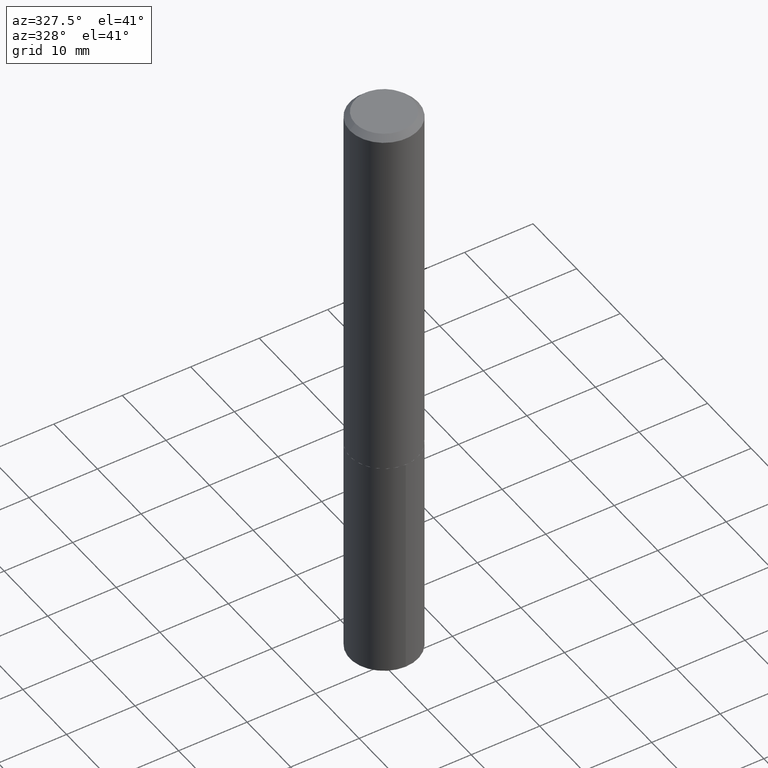
[diagram: clean part render]
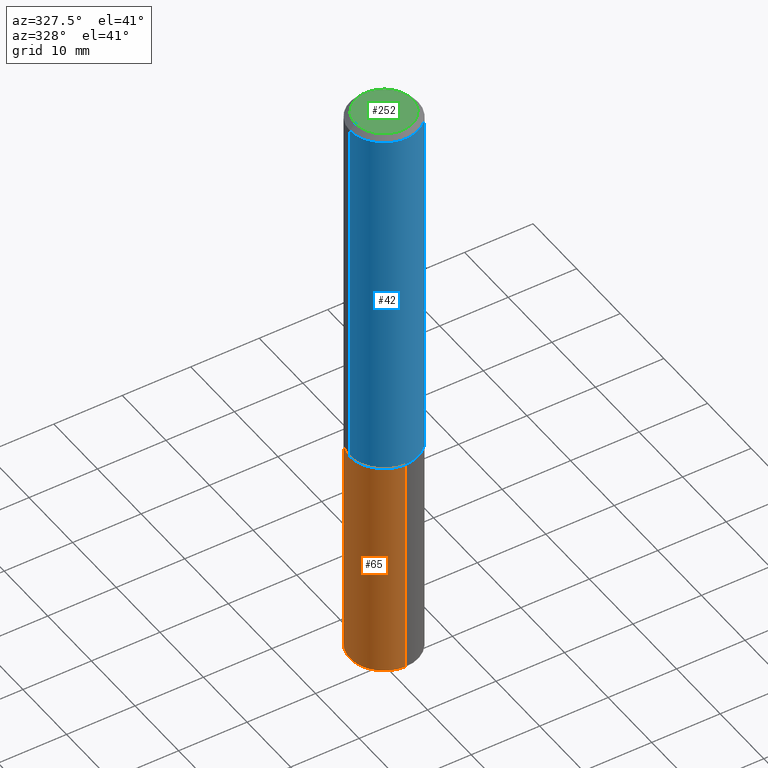
[diagram: same view with three faces highlighted in distinct colors, each labeled with its STEP entity id]
A machine part, auxiliary view with three faces highlighted in distinct colors.
Their STEP definitions:

[orange] entity #65 — the highlighted cylindrical surface (partial cylindrical patch) has radius 5 mm, axis along (-0, 0, 1).
#5 = CARTESIAN_POINT ( 'NONE',  ( 5.198822135068982087E-29, -7.422540178246643119E-15, -2.125899999999999679 ) ) ;
#16 = VERTEX_POINT ( 'NONE', #51 ) ;
#40 = VERTEX_POINT ( 'NONE', #173 ) ;
#51 = CARTESIAN_POINT ( 'NONE',  ( -1.374596203102457595E-15, -0.1968500000000119321, -3.424367437444348905 ) ) ;
#56 = DIRECTION ( 'NONE',  ( -6.982962677686265133E-15, -1.000000000000000000, 2.775563112689116301E-15 ) ) ;
#65 = ADVANCED_FACE ( 'NONE', ( #84 ), #293, .T. ) ;
#70 = DIRECTION ( 'NONE',  ( -6.982962677686265133E-15, -1.000000000000000000, 4.163344669033674845E-15 ) ) ;
#83 = VECTOR ( 'NONE', #97, 39.37007874015748143 ) ;
#84 = FACE_OUTER_BOUND ( 'NONE', #90, .T. ) ;
#90 = EDGE_LOOP ( 'NONE', ( #385, #176, #163, #151 ) ) ;
#97 = DIRECTION ( 'NONE',  ( -2.445470202318777158E-29, 3.491479339500309675E-15, 1.000000000000000000 ) ) ;
#98 = DIRECTION ( 'NONE',  ( -2.445470202318777158E-29, 3.491479339500309281E-15, 1.000000000000000000 ) ) ;
#113 = CARTESIAN_POINT ( 'NONE',  ( -1.374596203102489543E-15, -0.1968500000000074357, -2.125899999999999235 ) ) ;
#119 = VECTOR ( 'NONE', #325, 39.37007874015748143 ) ;
#135 = AXIS2_PLACEMENT_3D ( 'NONE', #234, #238, #349 ) ;
#136 = AXIS2_PLACEMENT_3D ( 'NONE', #241, #149, #56 ) ;
#149 = DIRECTION ( 'NONE',  ( -2.445470202318777158E-29, 3.491479339500309281E-15, 1.000000000000000000 ) ) ;
#151 = ORIENTED_EDGE ( 'NONE', *, *, #286, .F. ) ;
#163 = ORIENTED_EDGE ( 'NONE', *, *, #228, .T. ) ;
#173 = CARTESIAN_POINT ( 'NONE',  ( 1.398703375343841210E-15, 0.1968499999999926420, -2.125900000000000567 ) ) ;
#176 = ORIENTED_EDGE ( 'NONE', *, *, #217, .T. ) ;
#185 = LINE ( 'NONE', #366, #119 ) ;
#202 = VERTEX_POINT ( 'NONE', #113 ) ;
#217 = EDGE_CURVE ( 'NONE', #254, #16, #303, .T. ) ;
#228 = EDGE_CURVE ( 'NONE', #16, #202, #267, .T. ) ;
#234 = CARTESIAN_POINT ( 'NONE',  ( 5.198822135068982087E-29, -7.422540178246643119E-15, -2.125899999999999679 ) ) ;
#238 = DIRECTION ( 'NONE',  ( -2.445470202318777158E-29, 3.491479339500309281E-15, 1.000000000000000000 ) ) ;
#241 = CARTESIAN_POINT ( 'NONE',  ( 8.374185562020359502E-29, -1.195611240909750023E-14, -3.424367437444349793 ) ) ;
#247 = CARTESIAN_POINT ( 'NONE',  ( 1.398703375343840618E-15, 0.1968499999999880345, -3.424367437444350237 ) ) ;
#254 = VERTEX_POINT ( 'NONE', #247 ) ;
#267 = LINE ( 'NONE', #386, #83 ) ;
#283 = EDGE_CURVE ( 'NONE', #254, #40, #185, .T. ) ;
#286 = EDGE_CURVE ( 'NONE', #40, #202, #327, .T. ) ;
#293 = CYLINDRICAL_SURFACE ( 'NONE', #135, 0.1968500000000000250 ) ;
#303 = CIRCLE ( 'NONE', #136, 0.1968500000000000250 ) ;
#311 = AXIS2_PLACEMENT_3D ( 'NONE', #5, #98, #70 ) ;
#325 = DIRECTION ( 'NONE',  ( -2.445470202318777158E-29, 3.491479339500309675E-15, 1.000000000000000000 ) ) ;
#327 = CIRCLE ( 'NONE', #311, 0.1968500000000000250 ) ;
#349 = DIRECTION ( 'NONE',  ( -6.982962677686265133E-15, -1.000000000000000000, 4.163344669033674845E-15 ) ) ;
#366 = CARTESIAN_POINT ( 'NONE',  ( 1.398703375343809064E-15, 0.1968499999999926142, -2.125900000000000567 ) ) ;
#385 = ORIENTED_EDGE ( 'NONE', *, *, #283, .F. ) ;
#386 = CARTESIAN_POINT ( 'NONE',  ( -1.374596203102489543E-15, -0.1968500000000074357, -2.125899999999999235 ) ) ;

[blue] entity #42 — the highlighted cylindrical surface (partial cylindrical patch) has radius 5 mm, axis along (-0, 0, 1).
#4 = AXIS2_PLACEMENT_3D ( 'NONE', #263, #210, #320 ) ;
#29 = CARTESIAN_POINT ( 'NONE',  ( -0.1968500000000000250, -2.366248239364276387E-15, -0.03125000000000020817 ) ) ;
#42 = ADVANCED_FACE ( 'NONE', ( #354 ), #344, .T. ) ;
#43 = VERTEX_POINT ( 'NONE', #86 ) ;
#45 = VERTEX_POINT ( 'NONE', #239 ) ;
#58 = DIRECTION ( 'NONE',  ( -2.445468806185136877E-29, 3.491481338843145188E-15, 1.000000000000000000 ) ) ;
#79 = ORIENTED_EDGE ( 'NONE', *, *, #162, .T. ) ;
#86 = CARTESIAN_POINT ( 'NONE',  ( 0.1968500000000000250, -1.483704994941390709E-15, -0.03125000000000020817 ) ) ;
#91 = DIRECTION ( 'NONE',  ( -2.445468806185136877E-29, 3.491481338843145188E-15, 1.000000000000000000 ) ) ;
#93 = ORIENTED_EDGE ( 'NONE', *, *, #140, .F. ) ;
#127 = LINE ( 'NONE', #270, #142 ) ;
#140 = EDGE_CURVE ( 'NONE', #342, #148, #297, .T. ) ;
#142 = VECTOR ( 'NONE', #91, 39.37007874015748143 ) ;
#148 = VERTEX_POINT ( 'NONE', #29 ) ;
#150 = AXIS2_PLACEMENT_3D ( 'NONE', #205, #315, #260 ) ;
#152 = CARTESIAN_POINT ( 'NONE',  ( -0.1968500000000002470, -6.022091062233462250E-15, -2.125399999999999956 ) ) ;
#160 = VECTOR ( 'NONE', #58, 39.37007874015748143 ) ;
#162 = EDGE_CURVE ( 'NONE', #342, #45, #168, .T. ) ;
#168 = CIRCLE ( 'NONE', #150, 0.1968500000000002470 ) ;
#183 = CARTESIAN_POINT ( 'NONE',  ( -0.1968500000000001082, 1.398703375343757985E-15, -9.682923725166787881E-30 ) ) ;
#194 = CIRCLE ( 'NONE', #208, 0.1968500000000000250 ) ;
#205 = CARTESIAN_POINT ( 'NONE',  ( 5.197599400665889285E-29, -7.420794437577220826E-15, -2.125399999999999956 ) ) ;
#208 = AXIS2_PLACEMENT_3D ( 'NONE', #272, #220, #299 ) ;
#210 = DIRECTION ( 'NONE',  ( -2.445468806185136597E-29, 3.491481338843145583E-15, 1.000000000000000000 ) ) ;
#215 = ORIENTED_EDGE ( 'NONE', *, *, #338, .F. ) ;
#220 = DIRECTION ( 'NONE',  ( -2.445468806185136597E-29, 3.491481338843145583E-15, 1.000000000000000000 ) ) ;
#239 = CARTESIAN_POINT ( 'NONE',  ( 0.1968500000000002470, -8.795390640679764012E-15, -2.125399999999999956 ) ) ;
#260 = DIRECTION ( 'NONE',  ( 1.000000000000000000, -6.982962677686265133E-15, 0.000000000000000000 ) ) ;
#263 = CARTESIAN_POINT ( 'NONE',  ( 0.000000000000000000, 0.000000000000000000, 0.000000000000000000 ) ) ;
#270 = CARTESIAN_POINT ( 'NONE',  ( 0.1968500000000001082, -1.374596203102542397E-15, 9.598753983154305062E-30 ) ) ;
#272 = CARTESIAN_POINT ( 'NONE',  ( 7.642090019328602662E-31, -1.091087918388490267E-16, -0.03125000000000020817 ) ) ;
#297 = LINE ( 'NONE', #183, #160 ) ;
#299 = DIRECTION ( 'NONE',  ( 1.000000000000000000, -6.982962677686265922E-15, 0.000000000000000000 ) ) ;
#307 = EDGE_CURVE ( 'NONE', #45, #43, #127, .T. ) ;
#315 = DIRECTION ( 'NONE',  ( -2.445468806185136597E-29, 3.491481338843145583E-15, 1.000000000000000000 ) ) ;
#320 = DIRECTION ( 'NONE',  ( 1.000000000000000000, -6.982962677686266711E-15, 4.876176775795935793E-29 ) ) ;
#336 = EDGE_LOOP ( 'NONE', ( #93, #79, #341, #215 ) ) ;
#338 = EDGE_CURVE ( 'NONE', #148, #43, #194, .T. ) ;
#341 = ORIENTED_EDGE ( 'NONE', *, *, #307, .T. ) ;
#342 = VERTEX_POINT ( 'NONE', #152 ) ;
#344 = CYLINDRICAL_SURFACE ( 'NONE', #4, 0.1968500000000001082 ) ;
#354 = FACE_OUTER_BOUND ( 'NONE', #336, .T. ) ;

[green] entity #252 — the highlighted planar face has unit normal (0, -0, -1).
#31 = DIRECTION ( 'NONE',  ( 2.438088387897960049E-29, -3.491481338843145188E-15, -1.000000000000000000 ) ) ;
#35 = DIRECTION ( 'NONE',  ( -1.000000000000000000, 6.982962677686265922E-15, -4.876176775795935793E-29 ) ) ;
#57 = CARTESIAN_POINT ( 'NONE',  ( -1.178467787315320954E-46, 1.682539673960460375E-32, 4.818985154644838991E-18 ) ) ;
#68 = DIRECTION ( 'NONE',  ( -2.445468806185136597E-29, 3.491481338843145583E-15, 1.000000000000000000 ) ) ;
#73 = EDGE_CURVE ( 'NONE', #279, #375, #141, .T. ) ;
#74 = EDGE_LOOP ( 'NONE', ( #100, #248 ) ) ;
#89 = AXIS2_PLACEMENT_3D ( 'NONE', #329, #68, #188 ) ;
#96 = AXIS2_PLACEMENT_3D ( 'NONE', #213, #31, #35 ) ;
#100 = ORIENTED_EDGE ( 'NONE', *, *, #384, .T. ) ;
#121 = PLANE ( 'NONE',  #96 ) ;
#141 = CIRCLE ( 'NONE', #193, 0.1655999999999999972 ) ;
#157 = FACE_OUTER_BOUND ( 'NONE', #74, .T. ) ;
#180 = DIRECTION ( 'NONE',  ( 1.000000000000000000, -6.982962677686266711E-15, 4.876363190812712291E-29 ) ) ;
#188 = DIRECTION ( 'NONE',  ( 1.000000000000000000, -6.982962677686266711E-15, 4.876363190812712291E-29 ) ) ;
#193 = AXIS2_PLACEMENT_3D ( 'NONE', #57, #209, #180 ) ;
#209 = DIRECTION ( 'NONE',  ( -2.445468806185136597E-29, 3.491481338843145583E-15, 1.000000000000000000 ) ) ;
#213 = CARTESIAN_POINT ( 'NONE',  ( -5.892338936576604772E-47, 8.412698369802301877E-33, 2.409492577322419495E-18 ) ) ;
#219 = CARTESIAN_POINT ( 'NONE',  ( -0.1655999999999999972, 1.210933015344269141E-15, 4.818985154636560574E-18 ) ) ;
#248 = ORIENTED_EDGE ( 'NONE', *, *, #73, .T. ) ;
#252 = ADVANCED_FACE ( 'NONE', ( #157 ), #121, .F. ) ;
#276 = CARTESIAN_POINT ( 'NONE',  ( 0.1655999999999999972, -1.297848145565570390E-15, 4.818985154653420164E-18 ) ) ;
#279 = VERTEX_POINT ( 'NONE', #276 ) ;
#329 = CARTESIAN_POINT ( 'NONE',  ( -1.178467787315320954E-46, 1.682539673960460375E-32, 4.818985154644838991E-18 ) ) ;
#335 = CIRCLE ( 'NONE', #89, 0.1655999999999999972 ) ;
#375 = VERTEX_POINT ( 'NONE', #219 ) ;
#384 = EDGE_CURVE ( 'NONE', #375, #279, #335, .T. ) ;